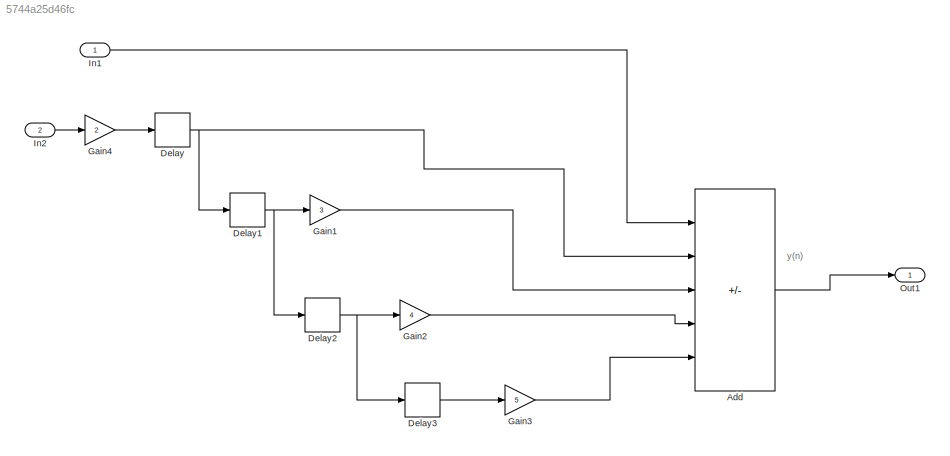
MODEL slx_5744a25d46fc
KIND model
CONFIG AbsTol = auto
CONFIG EnableMultiTasking = off
CONFIG FixedStep = auto
CONFIG MaxStep = auto
CONFIG MinStep = auto
CONFIG RelTol = 1e-3
CONFIG SampleTimeConstraint = Unconstrained
CONFIG SolverName = VariableStepAuto
CONFIG StartTime = 0.0
CONFIG StopTime = 10.0
BLOCK [Sum] Add
  IconShape = rectangular
  Inputs = ++--+
  Ports = [5, 1]
BLOCK [Delay] Delay
  DelayLength = 1
  InputPortMap = u0
  Ports = [1, 1]
BLOCK [Delay] Delay1
  DelayLength = 1
  InputPortMap = u0
  Ports = [1, 1]
BLOCK [Delay] Delay2
  DelayLength = 1
  InputPortMap = u0
  Ports = [1, 1]
BLOCK [Delay] Delay3
  DelayLength = 1
  InputPortMap = u0
  Ports = [1, 1]
BLOCK [Gain] Gain1
  Gain = 3
BLOCK [Gain] Gain2
  Gain = 4
BLOCK [Gain] Gain3
  Gain = 5
BLOCK [Gain] Gain4
  Gain = 2
BLOCK [Inport] In1
  OutDataTypeStr = double
  PortDimensions = 1
  SampleTime = [0,1]
  SamplingMode = Sample based
  SignalType = real
BLOCK [Inport] In2
  OutDataTypeStr = double
  Port = 2
  PortDimensions = 1
  SampleTime = [0,1]
  SamplingMode = Sample based
  SignalType = real
BLOCK [Outport] Out1
  OutDataTypeStr = double
  PortDimensions = 1
  SampleTime = [0,1]
  SamplingMode = Sample based
  SignalType = real
ANNOTATION (root): y(n)
LINE Add:1 -> Out1:1
NET Delay1:1 -> Delay2:1, Gain1:1
NET Delay2:1 -> Delay3:1, Gain2:1
LINE Delay3:1 -> Gain3:1
NET Delay:1 -> Add:2, Delay1:1
LINE Gain1:1 -> Add:3
LINE Gain2:1 -> Add:4
LINE Gain3:1 -> Add:5
LINE Gain4:1 -> Delay:1
LINE In1:1 -> Add:1
LINE In2:1 -> Gain4:1
note: NET lines group one-source signal fan-out (src -> all destinations, sorted); 1:1 wires keep LINE
